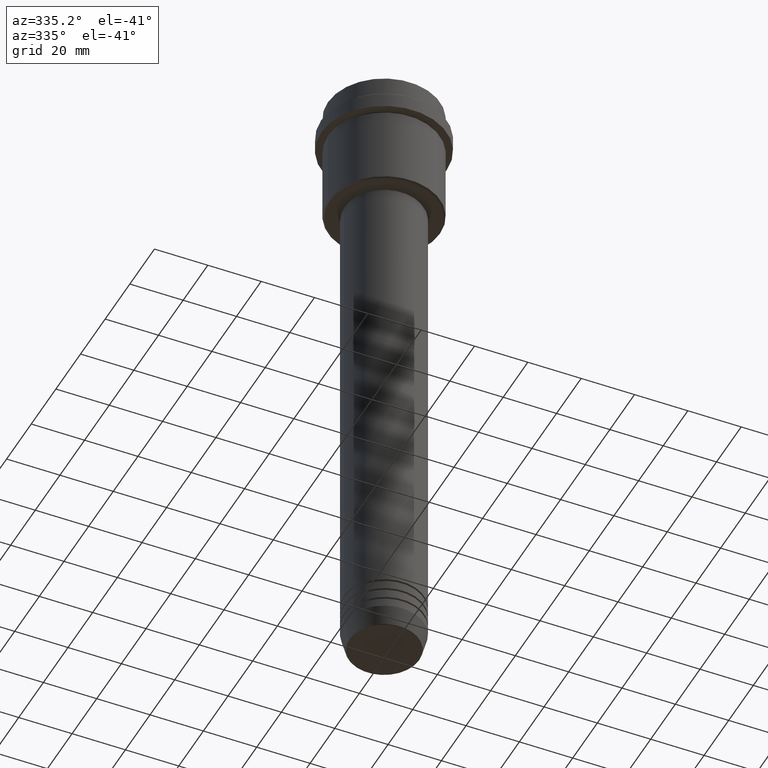
[diagram: clean part render]
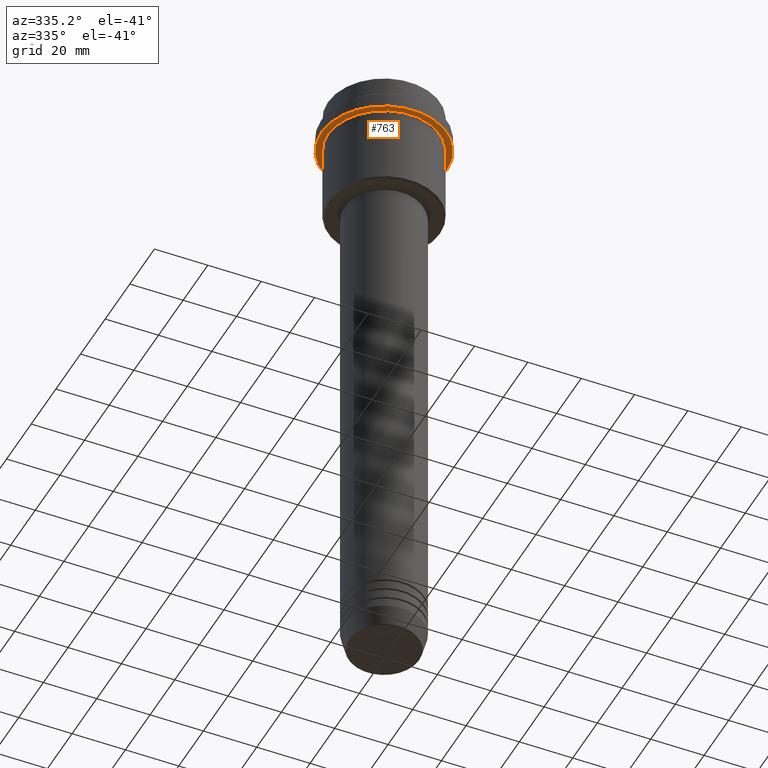
[diagram: same view with one face highlighted and labeled with its STEP entity id]
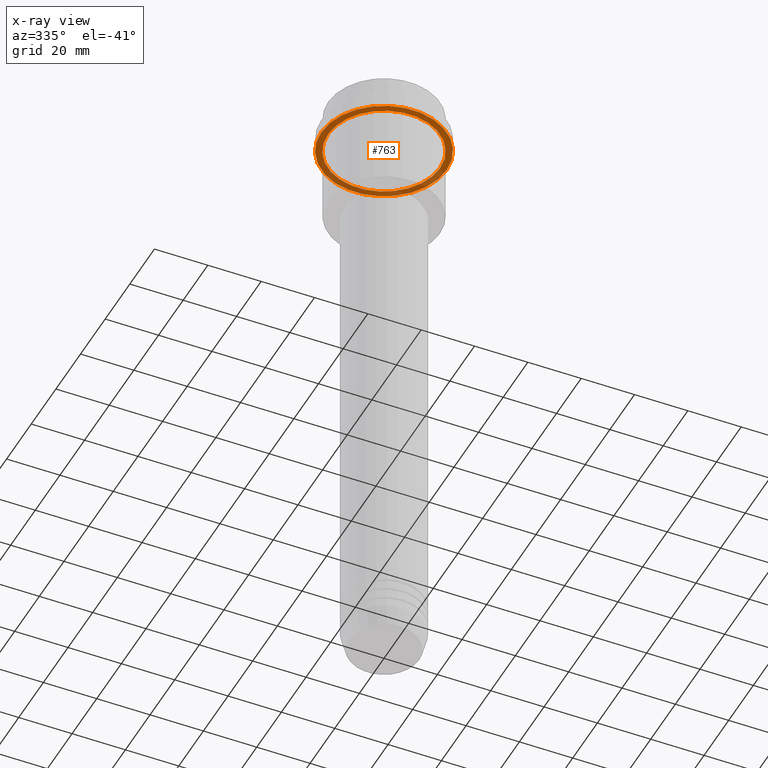
[diagram: x-ray of the same camera — body ghosted, the highlighted face saturated]
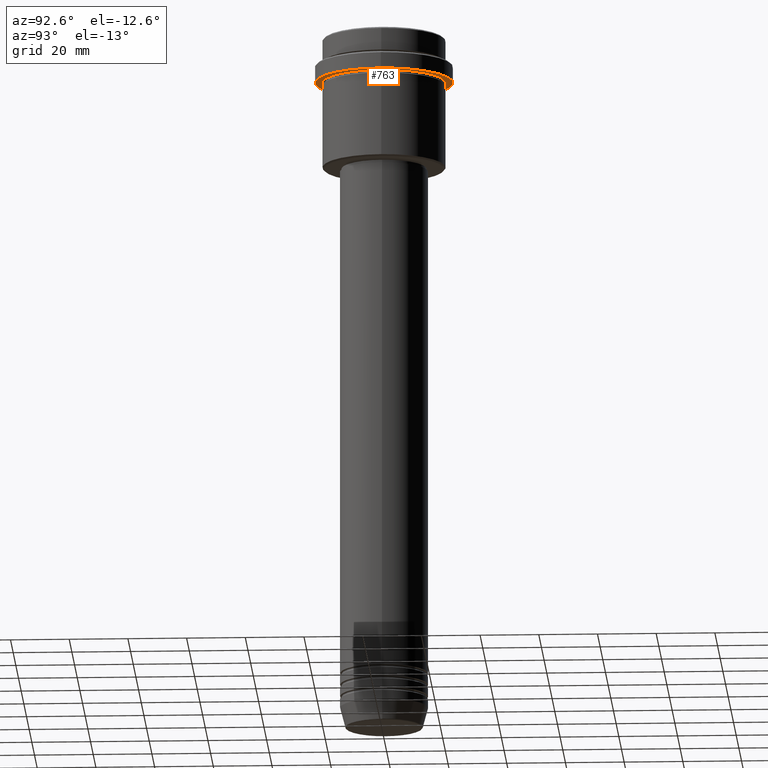
[diagram: same view with one face highlighted and labeled with its STEP entity id]
A machine part, auxiliary view. The second image highlights one B-rep face of the part: STEP entity #763.
The next image is the same camera in x-ray: the body ghosted, the highlighted face saturated — about 34% of this face is hidden behind the body in this view.
A second angle (auxiliary view) of the same face is appended — the face is thin or edge-on in the first view.
In plain terms, the highlighted planar face has unit normal (0, 0, -1).
Its self-contained STEP definition (entity closure, byte-faithful):
#46 = AXIS2_PLACEMENT_3D ( 'NONE', #362, #818, #1142 ) ;
#74 = AXIS2_PLACEMENT_3D ( 'NONE', #301, #642, #1374 ) ;
#101 = DIRECTION ( 'NONE',  ( 1.000000000000000000, 0.000000000000000000, 0.000000000000000000 ) ) ;
#131 = DIRECTION ( 'NONE',  ( 1.000000000000000000, 0.000000000000000000, 0.000000000000000000 ) ) ;
#147 = EDGE_LOOP ( 'NONE', ( #1173, #684 ) ) ;
#179 = ORIENTED_EDGE ( 'NONE', *, *, #1131, .F. ) ;
#244 = AXIS2_PLACEMENT_3D ( 'NONE', #1121, #1320, #131 ) ;
#266 = VERTEX_POINT ( 'NONE', #1220 ) ;
#301 = CARTESIAN_POINT ( 'NONE',  ( 0.000000000000000000, 0.000000000000000000, -15.00000000000000178 ) ) ;
#311 = AXIS2_PLACEMENT_3D ( 'NONE', #685, #780, #457 ) ;
#362 = CARTESIAN_POINT ( 'NONE',  ( 0.000000000000000000, 23.50000000000000355, -15.00000000000000178 ) ) ;
#387 = FACE_BOUND ( 'NONE', #147, .T. ) ;
#456 = EDGE_LOOP ( 'NONE', ( #604, #179 ) ) ;
#457 = DIRECTION ( 'NONE',  ( -1.000000000000000000, 0.000000000000000000, 0.000000000000000000 ) ) ;
#594 = FACE_OUTER_BOUND ( 'NONE', #456, .T. ) ;
#604 = ORIENTED_EDGE ( 'NONE', *, *, #614, .F. ) ;
#614 = EDGE_CURVE ( 'NONE', #1062, #266, #853, .T. ) ;
#642 = DIRECTION ( 'NONE',  ( -0.000000000000000000, -0.000000000000000000, 1.000000000000000000 ) ) ;
#648 = AXIS2_PLACEMENT_3D ( 'NONE', #1318, #1323, #101 ) ;
#668 = CARTESIAN_POINT ( 'NONE',  ( 23.50000000000000355, 0.000000000000000000, -15.00000000000000178 ) ) ;
#675 = EDGE_CURVE ( 'NONE', #1341, #914, #1403, .T. ) ;
#684 = ORIENTED_EDGE ( 'NONE', *, *, #675, .T. ) ;
#685 = CARTESIAN_POINT ( 'NONE',  ( 0.000000000000000000, 0.000000000000000000, -15.00000000000000178 ) ) ;
#690 = PLANE ( 'NONE',  #46 ) ;
#756 = CARTESIAN_POINT ( 'NONE',  ( -20.99999999999999289, 0.000000000000000000, -15.00000000000000178 ) ) ;
#760 = CIRCLE ( 'NONE', #74, 20.99999999999999289 ) ;
#763 = ADVANCED_FACE ( 'NONE', ( #387, #594 ), #690, .T. ) ;
#780 = DIRECTION ( 'NONE',  ( -0.000000000000000000, -0.000000000000000000, 1.000000000000000000 ) ) ;
#818 = DIRECTION ( 'NONE',  ( 0.000000000000000000, 0.000000000000000000, -1.000000000000000000 ) ) ;
#853 = CIRCLE ( 'NONE', #244, 23.50000000000000355 ) ;
#914 = VERTEX_POINT ( 'NONE', #756 ) ;
#929 = EDGE_CURVE ( 'NONE', #914, #1341, #760, .T. ) ;
#1062 = VERTEX_POINT ( 'NONE', #668 ) ;
#1121 = CARTESIAN_POINT ( 'NONE',  ( 0.000000000000000000, 0.000000000000000000, -15.00000000000000178 ) ) ;
#1131 = EDGE_CURVE ( 'NONE', #266, #1062, #1174, .T. ) ;
#1142 = DIRECTION ( 'NONE',  ( -1.000000000000000000, 0.000000000000000000, -0.000000000000000000 ) ) ;
#1173 = ORIENTED_EDGE ( 'NONE', *, *, #929, .T. ) ;
#1174 = CIRCLE ( 'NONE', #648, 23.50000000000000355 ) ;
#1220 = CARTESIAN_POINT ( 'NONE',  ( -23.50000000000000711, 2.877919977996281109E-15, -15.00000000000000178 ) ) ;
#1318 = CARTESIAN_POINT ( 'NONE',  ( 0.000000000000000000, 0.000000000000000000, -15.00000000000000178 ) ) ;
#1320 = DIRECTION ( 'NONE',  ( -0.000000000000000000, -0.000000000000000000, 1.000000000000000000 ) ) ;
#1323 = DIRECTION ( 'NONE',  ( -0.000000000000000000, -0.000000000000000000, 1.000000000000000000 ) ) ;
#1341 = VERTEX_POINT ( 'NONE', #1401 ) ;
#1374 = DIRECTION ( 'NONE',  ( -1.000000000000000000, 0.000000000000000000, 0.000000000000000000 ) ) ;
#1401 = CARTESIAN_POINT ( 'NONE',  ( 20.99999999999999289, 2.571758278209440872E-15, -15.00000000000000178 ) ) ;
#1403 = CIRCLE ( 'NONE', #311, 20.99999999999999289 ) ;